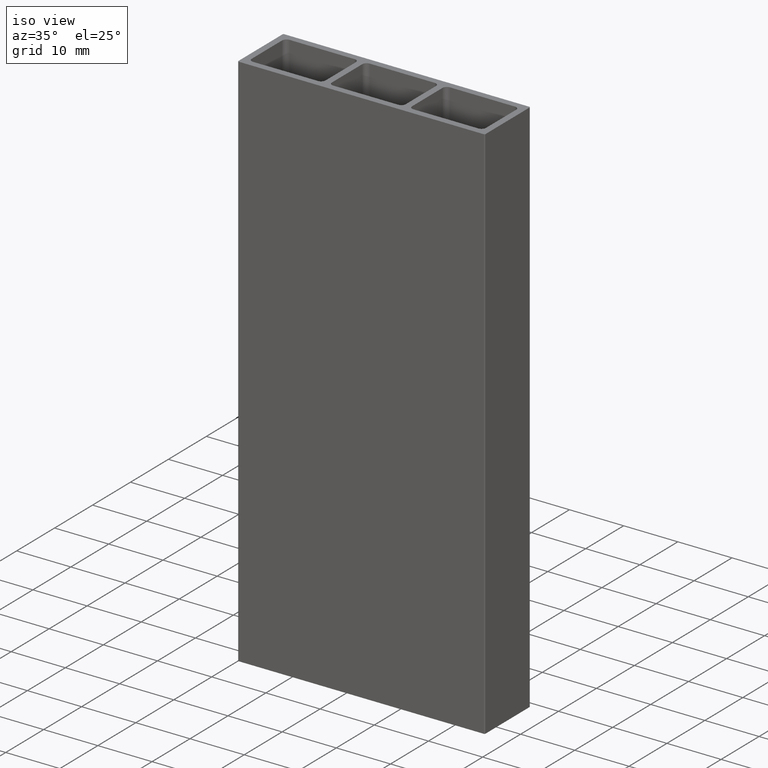
[diagram: clean part render]
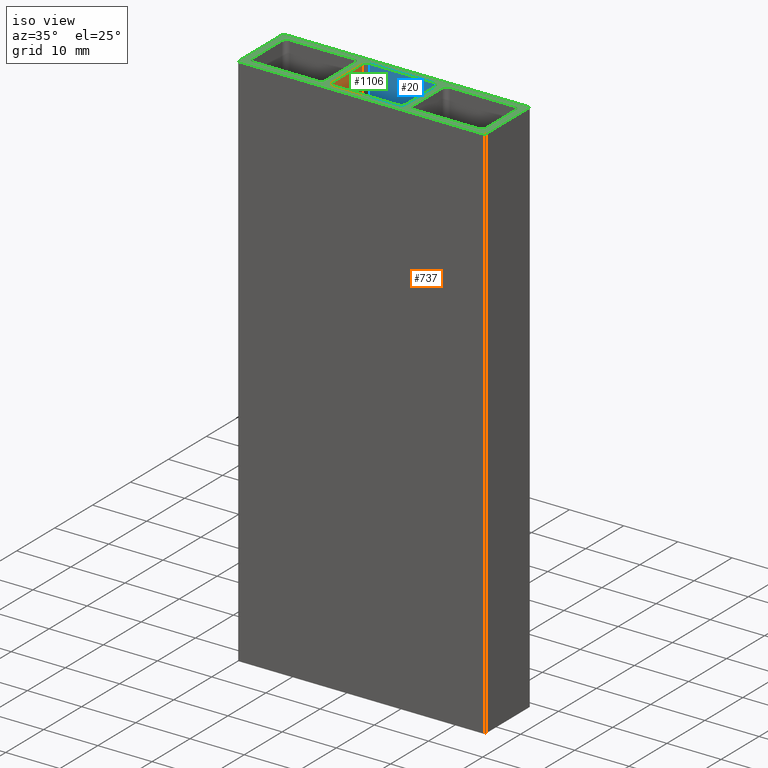
[diagram: same view with three faces highlighted in distinct colors, each labeled with its STEP entity id]
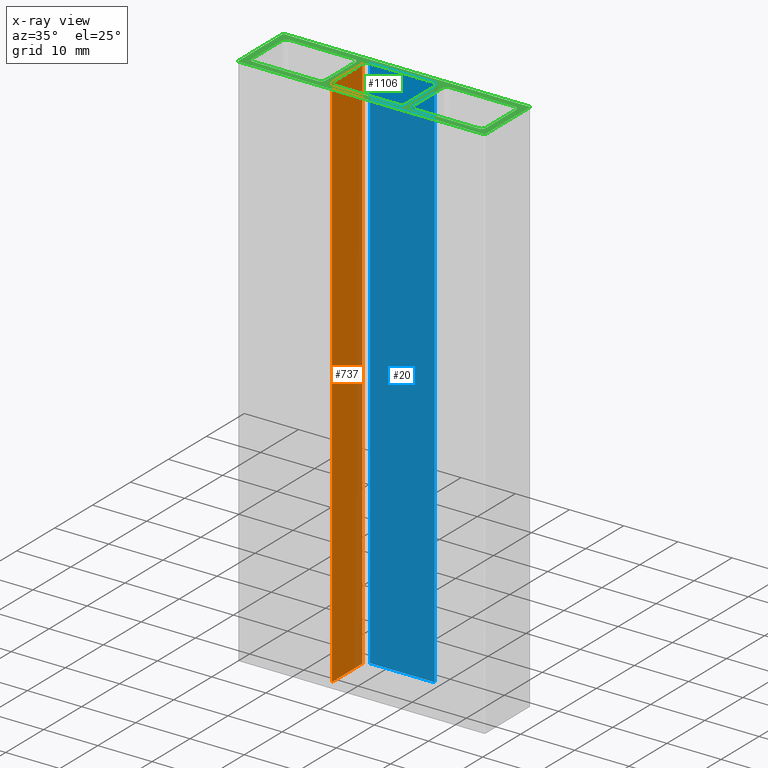
[diagram: x-ray of the same camera — body ghosted, the three highlighted faces saturated]
A machine part, iso view with three faces highlighted in distinct colors.
The next image is the same camera in x-ray (body ghosted, the three faces saturated) — at least one of them is partly hidden behind the body in this view.
Their STEP definitions:

[orange] entity #737 — the highlighted planar face has unit normal (1, -0, 0).
#9 = LINE ( 'NONE', #546, #784 ) ;
#10 = CARTESIAN_POINT ( 'NONE',  ( 7.999999999999998200, -3.999999999999995600, -50.00000000000000000 ) ) ;
#35 = VECTOR ( 'NONE', #833, 1000.000000000000000 ) ;
#57 = DIRECTION ( 'NONE',  ( -0.0000000000000000000, -0.0000000000000000000, -1.000000000000000000 ) ) ;
#60 = LINE ( 'NONE', #557, #35 ) ;
#102 = CARTESIAN_POINT ( 'NONE',  ( 7.999999999999998200, -3.999999999999995600, 50.00000000000000000 ) ) ;
#104 = CARTESIAN_POINT ( 'NONE',  ( 8.000000000000000000, 3.999999999999994200, -50.00000000000000000 ) ) ;
#108 = DIRECTION ( 'NONE',  ( -0.0000000000000000000, -0.0000000000000000000, -1.000000000000000000 ) ) ;
#141 = CARTESIAN_POINT ( 'NONE',  ( 8.000000000000000000, 3.999999999999994200, 50.00000000000000000 ) ) ;
#161 = VERTEX_POINT ( 'NONE', #10 ) ;
#200 = ORIENTED_EDGE ( 'NONE', *, *, #236, .T. ) ;
#209 = DIRECTION ( 'NONE',  ( 1.000000000000000000, -2.168404344971011600E-016, 0.0000000000000000000 ) ) ;
#236 = EDGE_CURVE ( 'NONE', #788, #762, #60, .T. ) ;
#240 = CARTESIAN_POINT ( 'NONE',  ( 8.000000000000000000, 3.999999999999994200, 50.00000000000000000 ) ) ;
#314 = VERTEX_POINT ( 'NONE', #1026 ) ;
#332 = ORIENTED_EDGE ( 'NONE', *, *, #1199, .F. ) ;
#344 = ORIENTED_EDGE ( 'NONE', *, *, #959, .T. ) ;
#366 = CARTESIAN_POINT ( 'NONE',  ( 8.000000000000000000, 3.999999999999994200, 50.00000000000000000 ) ) ;
#546 = CARTESIAN_POINT ( 'NONE',  ( 7.999999999999998200, -3.999999999999995600, 50.00000000000000000 ) ) ;
#557 = CARTESIAN_POINT ( 'NONE',  ( 8.000000000000000000, 3.999999999999994200, 50.00000000000000000 ) ) ;
#631 = LINE ( 'NONE', #240, #1133 ) ;
#676 = DIRECTION ( 'NONE',  ( 2.168404344971011600E-016, 1.000000000000000000, 0.0000000000000000000 ) ) ;
#693 = FACE_OUTER_BOUND ( 'NONE', #1089, .T. ) ;
#737 = ADVANCED_FACE ( 'NONE', ( #693 ), #1105, .T. ) ;
#762 = VERTEX_POINT ( 'NONE', #102 ) ;
#784 = VECTOR ( 'NONE', #108, 1000.000000000000000 ) ;
#788 = VERTEX_POINT ( 'NONE', #141 ) ;
#833 = DIRECTION ( 'NONE',  ( -2.168404344971011600E-016, -1.000000000000000000, 0.0000000000000000000 ) ) ;
#882 = LINE ( 'NONE', #104, #1008 ) ;
#955 = AXIS2_PLACEMENT_3D ( 'NONE', #366, #209, #676 ) ;
#959 = EDGE_CURVE ( 'NONE', #762, #161, #9, .T. ) ;
#986 = ORIENTED_EDGE ( 'NONE', *, *, #1031, .F. ) ;
#1008 = VECTOR ( 'NONE', #1019, 1000.000000000000000 ) ;
#1019 = DIRECTION ( 'NONE',  ( -2.168404344971011600E-016, -1.000000000000000000, 0.0000000000000000000 ) ) ;
#1026 = CARTESIAN_POINT ( 'NONE',  ( 8.000000000000000000, 3.999999999999994200, -50.00000000000000000 ) ) ;
#1031 = EDGE_CURVE ( 'NONE', #314, #161, #882, .T. ) ;
#1089 = EDGE_LOOP ( 'NONE', ( #986, #332, #200, #344 ) ) ;
#1105 = PLANE ( 'NONE',  #955 ) ;
#1133 = VECTOR ( 'NONE', #57, 1000.000000000000000 ) ;
#1199 = EDGE_CURVE ( 'NONE', #788, #314, #631, .T. ) ;

[blue] entity #20 — the highlighted planar face has unit normal (0, -1, 0).
#17 = EDGE_LOOP ( 'NONE', ( #620, #114, #482, #686 ) ) ;
#20 = ADVANCED_FACE ( 'NONE', ( #51 ), #661, .T. ) ;
#51 = FACE_OUTER_BOUND ( 'NONE', #17, .T. ) ;
#54 = VECTOR ( 'NONE', #91, 1000.000000000000000 ) ;
#61 = LINE ( 'NONE', #1087, #937 ) ;
#64 = LINE ( 'NONE', #427, #237 ) ;
#91 = DIRECTION ( 'NONE',  ( -0.0000000000000000000, -0.0000000000000000000, -1.000000000000000000 ) ) ;
#114 = ORIENTED_EDGE ( 'NONE', *, *, #1080, .F. ) ;
#159 = VERTEX_POINT ( 'NONE', #1122 ) ;
#216 = EDGE_CURVE ( 'NONE', #1156, #492, #61, .T. ) ;
#237 = VECTOR ( 'NONE', #600, 1000.000000000000000 ) ;
#283 = CARTESIAN_POINT ( 'NONE',  ( 20.79999999999999700, 4.799999999999999800, 50.00000000000000000 ) ) ;
#295 = DIRECTION ( 'NONE',  ( -1.000000000000000000, 0.0000000000000000000, 0.0000000000000000000 ) ) ;
#347 = CARTESIAN_POINT ( 'NONE',  ( 20.79999999999999700, 4.799999999999999800, 50.00000000000000000 ) ) ;
#427 = CARTESIAN_POINT ( 'NONE',  ( 8.800000000000006000, 4.799999999999999800, 50.00000000000000000 ) ) ;
#441 = AXIS2_PLACEMENT_3D ( 'NONE', #500, #1139, #679 ) ;
#463 = VERTEX_POINT ( 'NONE', #650 ) ;
#482 = ORIENTED_EDGE ( 'NONE', *, *, #216, .T. ) ;
#492 = VERTEX_POINT ( 'NONE', #884 ) ;
#494 = DIRECTION ( 'NONE',  ( -1.000000000000000000, 0.0000000000000000000, 0.0000000000000000000 ) ) ;
#500 = CARTESIAN_POINT ( 'NONE',  ( 20.79999999999999700, 4.799999999999999800, 50.00000000000000000 ) ) ;
#600 = DIRECTION ( 'NONE',  ( -0.0000000000000000000, -0.0000000000000000000, -1.000000000000000000 ) ) ;
#620 = ORIENTED_EDGE ( 'NONE', *, *, #947, .F. ) ;
#638 = CARTESIAN_POINT ( 'NONE',  ( 20.79999999999999700, 4.799999999999999800, -50.00000000000000000 ) ) ;
#650 = CARTESIAN_POINT ( 'NONE',  ( 20.79999999999999700, 4.799999999999999800, -50.00000000000000000 ) ) ;
#661 = PLANE ( 'NONE',  #441 ) ;
#679 = DIRECTION ( 'NONE',  ( 0.0000000000000000000, -0.0000000000000000000, -1.000000000000000000 ) ) ;
#686 = ORIENTED_EDGE ( 'NONE', *, *, #701, .T. ) ;
#701 = EDGE_CURVE ( 'NONE', #492, #159, #64, .T. ) ;
#799 = LINE ( 'NONE', #638, #844 ) ;
#844 = VECTOR ( 'NONE', #295, 1000.000000000000000 ) ;
#884 = CARTESIAN_POINT ( 'NONE',  ( 8.800000000000006000, 4.799999999999999800, 50.00000000000000000 ) ) ;
#937 = VECTOR ( 'NONE', #494, 1000.000000000000000 ) ;
#947 = EDGE_CURVE ( 'NONE', #463, #159, #799, .T. ) ;
#954 = LINE ( 'NONE', #283, #54 ) ;
#1080 = EDGE_CURVE ( 'NONE', #1156, #463, #954, .T. ) ;
#1087 = CARTESIAN_POINT ( 'NONE',  ( 20.79999999999999700, 4.799999999999999800, 50.00000000000000000 ) ) ;
#1122 = CARTESIAN_POINT ( 'NONE',  ( 8.800000000000006000, 4.799999999999999800, -50.00000000000000000 ) ) ;
#1139 = DIRECTION ( 'NONE',  ( 0.0000000000000000000, -1.000000000000000000, 0.0000000000000000000 ) ) ;
#1156 = VERTEX_POINT ( 'NONE', #347 ) ;

[green] entity #1106 — the highlighted planar face has unit normal (-0, 0, 1).
#1 = DIRECTION ( 'NONE',  ( 1.000000000000000000, 0.0000000000000000000, 0.0000000000000000000 ) ) ;
#6 = CIRCLE ( 'NONE', #142, 0.8000000000000020400 ) ;
#11 = VECTOR ( 'NONE', #220, 1000.000000000000000 ) ;
#18 = DIRECTION ( 'NONE',  ( 0.0000000000000000000, 0.0000000000000000000, 1.000000000000000000 ) ) ;
#23 = CIRCLE ( 'NONE', #976, 0.8000000000000003800 ) ;
#28 = VERTEX_POINT ( 'NONE', #1200 ) ;
#29 = DIRECTION ( 'NONE',  ( 1.000000000000000000, 0.0000000000000000000, 0.0000000000000000000 ) ) ;
#35 = VECTOR ( 'NONE', #833, 1000.000000000000000 ) ;
#39 = VECTOR ( 'NONE', #252, 1000.000000000000000 ) ;
#42 = DIRECTION ( 'NONE',  ( -1.000000000000000000, 0.0000000000000000000, 0.0000000000000000000 ) ) ;
#43 = VERTEX_POINT ( 'NONE', #228 ) ;
#56 = ORIENTED_EDGE ( 'NONE', *, *, #778, .T. ) ;
#60 = LINE ( 'NONE', #557, #35 ) ;
#61 = LINE ( 'NONE', #1087, #937 ) ;
#63 = VECTOR ( 'NONE', #1093, 1000.000000000000000 ) ;
#65 = DIRECTION ( 'NONE',  ( 1.000000000000000000, 0.0000000000000000000, 0.0000000000000000000 ) ) ;
#66 = CARTESIAN_POINT ( 'NONE',  ( 23.60000000000000500, 4.799999999999999800, 50.00000000000000000 ) ) ;
#69 = LINE ( 'NONE', #798, #872 ) ;
#79 = CARTESIAN_POINT ( 'NONE',  ( 8.799999999999998900, -4.000000000000000900, 50.00000000000000000 ) ) ;
#81 = ORIENTED_EDGE ( 'NONE', *, *, #282, .F. ) ;
#93 = EDGE_CURVE ( 'NONE', #654, #587, #122, .T. ) ;
#95 = VERTEX_POINT ( 'NONE', #624 ) ;
#102 = CARTESIAN_POINT ( 'NONE',  ( 7.999999999999998200, -3.999999999999995600, 50.00000000000000000 ) ) ;
#103 = CIRCLE ( 'NONE', #561, 0.8000000000000003800 ) ;
#110 = ORIENTED_EDGE ( 'NONE', *, *, #1160, .F. ) ;
#113 = LINE ( 'NONE', #438, #1113 ) ;
#115 = EDGE_CURVE ( 'NONE', #786, #361, #222, .T. ) ;
#117 = DIRECTION ( 'NONE',  ( 1.000000000000000000, 0.0000000000000000000, 0.0000000000000000000 ) ) ;
#122 = CIRCLE ( 'NONE', #625, 0.1999999999999996500 ) ;
#126 = CIRCLE ( 'NONE', #1038, 0.8000000000000020400 ) ;
#128 = DIRECTION ( 'NONE',  ( 1.000000000000000000, 0.0000000000000000000, 0.0000000000000000000 ) ) ;
#130 = EDGE_CURVE ( 'NONE', #612, #654, #1145, .T. ) ;
#132 = CARTESIAN_POINT ( 'NONE',  ( -6.799999999999998900, -3.999999999999995600, 50.00000000000000000 ) ) ;
#137 = CIRCLE ( 'NONE', #770, 0.8000000000000003800 ) ;
#141 = CARTESIAN_POINT ( 'NONE',  ( 8.000000000000000000, 3.999999999999994200, 50.00000000000000000 ) ) ;
#142 = AXIS2_PLACEMENT_3D ( 'NONE', #948, #1040, #302 ) ;
#143 = ORIENTED_EDGE ( 'NONE', *, *, #913, .F. ) ;
#157 = AXIS2_PLACEMENT_3D ( 'NONE', #369, #272, #837 ) ;
#165 = CIRCLE ( 'NONE', #350, 0.8000000000000003800 ) ;
#167 = DIRECTION ( 'NONE',  ( -0.0000000000000000000, 0.0000000000000000000, 1.000000000000000000 ) ) ;
#179 = LINE ( 'NONE', #596, #433 ) ;
#183 = AXIS2_PLACEMENT_3D ( 'NONE', #1066, #1168, #65 ) ;
#185 = VERTEX_POINT ( 'NONE', #877 ) ;
#190 = EDGE_CURVE ( 'NONE', #835, #299, #810, .T. ) ;
#194 = CARTESIAN_POINT ( 'NONE',  ( 37.40000000000000600, -5.800000000000002500, 50.00000000000000000 ) ) ;
#196 = DIRECTION ( 'NONE',  ( -0.0000000000000000000, 1.000000000000000000, -0.0000000000000000000 ) ) ;
#199 = EDGE_CURVE ( 'NONE', #821, #836, #179, .T. ) ;
#207 = ORIENTED_EDGE ( 'NONE', *, *, #304, .F. ) ;
#208 = AXIS2_PLACEMENT_3D ( 'NONE', #79, #720, #571 ) ;
#210 = ORIENTED_EDGE ( 'NONE', *, *, #590, .F. ) ;
#216 = EDGE_CURVE ( 'NONE', #1156, #492, #61, .T. ) ;
#218 = EDGE_CURVE ( 'NONE', #337, #1070, #717, .T. ) ;
#220 = DIRECTION ( 'NONE',  ( 1.000000000000000000, -0.0000000000000000000, -0.0000000000000000000 ) ) ;
#222 = CIRCLE ( 'NONE', #755, 0.8000000000000003800 ) ;
#225 = VERTEX_POINT ( 'NONE', #1157 ) ;
#228 = CARTESIAN_POINT ( 'NONE',  ( 6.800000000000000700, 3.999999999999994200, 50.00000000000000000 ) ) ;
#234 = ORIENTED_EDGE ( 'NONE', *, *, #610, .F. ) ;
#236 = EDGE_CURVE ( 'NONE', #788, #762, #60, .T. ) ;
#239 = LINE ( 'NONE', #918, #11 ) ;
#251 = VECTOR ( 'NONE', #1030, 1000.000000000000000 ) ;
#252 = DIRECTION ( 'NONE',  ( 1.000000000000000000, 0.0000000000000000000, 0.0000000000000000000 ) ) ;
#263 = CARTESIAN_POINT ( 'NONE',  ( -7.800000000000001600, -5.800000000000001600, 50.00000000000000000 ) ) ;
#272 = DIRECTION ( 'NONE',  ( -0.0000000000000000000, 0.0000000000000000000, 1.000000000000000000 ) ) ;
#279 = CARTESIAN_POINT ( 'NONE',  ( 22.80000000000000100, 3.999999999999994200, 50.00000000000000000 ) ) ;
#282 = EDGE_CURVE ( 'NONE', #225, #779, #746, .T. ) ;
#289 = LINE ( 'NONE', #527, #421 ) ;
#292 = VERTEX_POINT ( 'NONE', #795 ) ;
#296 = AXIS2_PLACEMENT_3D ( 'NONE', #888, #1060, #42 ) ;
#297 = CARTESIAN_POINT ( 'NONE',  ( 35.60000000000000100, 3.999999999999999100, 50.00000000000000000 ) ) ;
#299 = VERTEX_POINT ( 'NONE', #659 ) ;
#302 = DIRECTION ( 'NONE',  ( -1.000000000000000000, 0.0000000000000000000, 0.0000000000000000000 ) ) ;
#304 = EDGE_CURVE ( 'NONE', #185, #225, #951, .T. ) ;
#316 = LINE ( 'NONE', #1102, #39 ) ;
#317 = ORIENTED_EDGE ( 'NONE', *, *, #429, .T. ) ;
#320 = CARTESIAN_POINT ( 'NONE',  ( -7.800000000000001600, -6.000000000000000900, 50.00000000000000000 ) ) ;
#322 = CARTESIAN_POINT ( 'NONE',  ( 36.39999999999999900, 3.999999999999994200, 50.00000000000000000 ) ) ;
#335 = CARTESIAN_POINT ( 'NONE',  ( -7.800000000000000700, 5.799999999999999800, 50.00000000000000000 ) ) ;
#337 = VERTEX_POINT ( 'NONE', #66 ) ;
#340 = ORIENTED_EDGE ( 'NONE', *, *, #738, .F. ) ;
#341 = ORIENTED_EDGE ( 'NONE', *, *, #218, .F. ) ;
#347 = CARTESIAN_POINT ( 'NONE',  ( 20.79999999999999700, 4.799999999999999800, 50.00000000000000000 ) ) ;
#350 = AXIS2_PLACEMENT_3D ( 'NONE', #1081, #1177, #533 ) ;
#353 = CARTESIAN_POINT ( 'NONE',  ( 23.60000000000000500, 4.799999999999999800, 50.00000000000000000 ) ) ;
#356 = CARTESIAN_POINT ( 'NONE',  ( -6.800000000000000700, 3.999999999999994200, 50.00000000000000000 ) ) ;
#361 = VERTEX_POINT ( 'NONE', #519 ) ;
#369 = CARTESIAN_POINT ( 'NONE',  ( -7.999999999999998200, -6.000000000000000900, 50.00000000000000000 ) ) ;
#371 = DIRECTION ( 'NONE',  ( -1.000000000000000000, 0.0000000000000000000, 0.0000000000000000000 ) ) ;
#380 = CARTESIAN_POINT ( 'NONE',  ( 6.000000000000001800, -4.000000000000000900, 50.00000000000000000 ) ) ;
#383 = ORIENTED_EDGE ( 'NONE', *, *, #1175, .T. ) ;
#388 = CARTESIAN_POINT ( 'NONE',  ( 37.60000000000000100, -5.800000000000002500, 50.00000000000000000 ) ) ;
#398 = EDGE_LOOP ( 'NONE', ( #792, #1164, #110, #830, #458, #419, #340, #143 ) ) ;
#413 = ORIENTED_EDGE ( 'NONE', *, *, #236, .F. ) ;
#414 = DIRECTION ( 'NONE',  ( -1.000000000000000000, -0.0000000000000000000, -0.0000000000000000000 ) ) ;
#415 = CARTESIAN_POINT ( 'NONE',  ( 23.60000000000000100, 4.000000000000000000, 50.00000000000000000 ) ) ;
#418 = VECTOR ( 'NONE', #196, 1000.000000000000000 ) ;
#419 = ORIENTED_EDGE ( 'NONE', *, *, #115, .F. ) ;
#421 = VECTOR ( 'NONE', #521, 1000.000000000000000 ) ;
#429 = EDGE_CURVE ( 'NONE', #1005, #607, #906, .T. ) ;
#431 = DIRECTION ( 'NONE',  ( 1.000000000000000000, 0.0000000000000000000, 0.0000000000000000000 ) ) ;
#432 = VERTEX_POINT ( 'NONE', #727 ) ;
#433 = VECTOR ( 'NONE', #504, 1000.000000000000000 ) ;
#438 = CARTESIAN_POINT ( 'NONE',  ( -5.999999999999994700, 4.799999999999999800, 50.00000000000000000 ) ) ;
#454 = ORIENTED_EDGE ( 'NONE', *, *, #1022, .F. ) ;
#458 = ORIENTED_EDGE ( 'NONE', *, *, #964, .F. ) ;
#470 = DIRECTION ( 'NONE',  ( 1.000000000000000000, 0.0000000000000000000, 0.0000000000000000000 ) ) ;
#472 = EDGE_CURVE ( 'NONE', #779, #95, #126, .T. ) ;
#474 = DIRECTION ( 'NONE',  ( -1.000000000000000000, 0.0000000000000000000, 0.0000000000000000000 ) ) ;
#475 = DIRECTION ( 'NONE',  ( -1.000000000000000000, 0.0000000000000000000, 0.0000000000000000000 ) ) ;
#479 = CIRCLE ( 'NONE', #208, 0.8000000000000003800 ) ;
#483 = AXIS2_PLACEMENT_3D ( 'NONE', #335, #980, #431 ) ;
#484 = CIRCLE ( 'NONE', #483, 0.1999999999999996500 ) ;
#487 = EDGE_LOOP ( 'NONE', ( #1189, #234, #542, #931, #1065, #210, #413, #1136 ) ) ;
#489 = CARTESIAN_POINT ( 'NONE',  ( 8.800000000000000700, 3.999999999999999100, 50.00000000000000000 ) ) ;
#491 = CARTESIAN_POINT ( 'NONE',  ( -7.999999999999998200, -5.800000000000002500, 50.00000000000000000 ) ) ;
#492 = VERTEX_POINT ( 'NONE', #884 ) ;
#494 = DIRECTION ( 'NONE',  ( -1.000000000000000000, 0.0000000000000000000, 0.0000000000000000000 ) ) ;
#501 = DIRECTION ( 'NONE',  ( -1.000000000000000000, 0.0000000000000000000, 0.0000000000000000000 ) ) ;
#502 = CIRCLE ( 'NONE', #690, 0.1999999999999987900 ) ;
#504 = DIRECTION ( 'NONE',  ( -0.0000000000000000000, 1.000000000000000000, -0.0000000000000000000 ) ) ;
#509 = EDGE_CURVE ( 'NONE', #43, #28, #23, .T. ) ;
#515 = VERTEX_POINT ( 'NONE', #132 ) ;
#519 = CARTESIAN_POINT ( 'NONE',  ( 6.800000000000002500, -3.999999999999995600, 50.00000000000000000 ) ) ;
#520 = CIRCLE ( 'NONE', #990, 0.8000000000000020400 ) ;
#521 = DIRECTION ( 'NONE',  ( 0.0000000000000000000, -1.000000000000000000, 0.0000000000000000000 ) ) ;
#524 = CARTESIAN_POINT ( 'NONE',  ( 37.60000000000000100, 5.999999999999999100, 50.00000000000000000 ) ) ;
#527 = CARTESIAN_POINT ( 'NONE',  ( 22.80000000000000100, 3.999999999999994200, 50.00000000000000000 ) ) ;
#531 = LINE ( 'NONE', #966, #63 ) ;
#533 = DIRECTION ( 'NONE',  ( 1.000000000000000000, 0.0000000000000000000, 0.0000000000000000000 ) ) ;
#542 = ORIENTED_EDGE ( 'NONE', *, *, #199, .F. ) ;
#544 = VERTEX_POINT ( 'NONE', #547 ) ;
#545 = VECTOR ( 'NONE', #414, 1000.000000000000000 ) ;
#547 = CARTESIAN_POINT ( 'NONE',  ( 37.40000000000000600, -6.000000000000000900, 50.00000000000000000 ) ) ;
#548 = FACE_BOUND ( 'NONE', #398, .T. ) ;
#556 = CARTESIAN_POINT ( 'NONE',  ( 20.80000000000000100, -4.000000000000000900, 50.00000000000000000 ) ) ;
#557 = CARTESIAN_POINT ( 'NONE',  ( 8.000000000000000000, 3.999999999999994200, 50.00000000000000000 ) ) ;
#559 = CARTESIAN_POINT ( 'NONE',  ( 21.60000000000000100, 3.999999999999994200, 50.00000000000000000 ) ) ;
#561 = AXIS2_PLACEMENT_3D ( 'NONE', #1176, #594, #371 ) ;
#564 = DIRECTION ( 'NONE',  ( 0.0000000000000000000, 0.0000000000000000000, 1.000000000000000000 ) ) ;
#571 = DIRECTION ( 'NONE',  ( 1.000000000000000000, 0.0000000000000000000, 0.0000000000000000000 ) ) ;
#587 = VERTEX_POINT ( 'NONE', #320 ) ;
#590 = EDGE_CURVE ( 'NONE', #762, #593, #479, .T. ) ;
#593 = VERTEX_POINT ( 'NONE', #695 ) ;
#594 = DIRECTION ( 'NONE',  ( 0.0000000000000000000, 0.0000000000000000000, 1.000000000000000000 ) ) ;
#596 = CARTESIAN_POINT ( 'NONE',  ( 21.60000000000000100, 3.999999999999994200, 50.00000000000000000 ) ) ;
#598 = ORIENTED_EDGE ( 'NONE', *, *, #985, .T. ) ;
#607 = VERTEX_POINT ( 'NONE', #733 ) ;
#610 = EDGE_CURVE ( 'NONE', #836, #1156, #6, .T. ) ;
#612 = VERTEX_POINT ( 'NONE', #708 ) ;
#614 = LINE ( 'NONE', #682, #734 ) ;
#624 = CARTESIAN_POINT ( 'NONE',  ( 35.59999999999999400, 4.799999999999999800, 50.00000000000000000 ) ) ;
#625 = AXIS2_PLACEMENT_3D ( 'NONE', #263, #167, #128 ) ;
#627 = EDGE_CURVE ( 'NONE', #95, #337, #1112, .T. ) ;
#654 = VERTEX_POINT ( 'NONE', #491 ) ;
#658 = CARTESIAN_POINT ( 'NONE',  ( 23.60000000000000100, -4.000000000000000900, 50.00000000000000000 ) ) ;
#659 = CARTESIAN_POINT ( 'NONE',  ( -7.800000000000001600, 5.999999999999999100, 50.00000000000000000 ) ) ;
#660 = DIRECTION ( 'NONE',  ( 1.000000000000000000, 0.0000000000000000000, 0.0000000000000000000 ) ) ;
#662 = ORIENTED_EDGE ( 'NONE', *, *, #93, .T. ) ;
#664 = ORIENTED_EDGE ( 'NONE', *, *, #190, .T. ) ;
#670 = EDGE_LOOP ( 'NONE', ( #678, #598, #317, #56, #664, #383, #1203, #662 ) ) ;
#674 = VERTEX_POINT ( 'NONE', #356 ) ;
#678 = ORIENTED_EDGE ( 'NONE', *, *, #886, .T. ) ;
#682 = CARTESIAN_POINT ( 'NONE',  ( -5.999999999999992900, -4.800000000000001600, 50.00000000000000000 ) ) ;
#685 = DIRECTION ( 'NONE',  ( 1.000000000000000000, 0.0000000000000000000, 0.0000000000000000000 ) ) ;
#688 = VERTEX_POINT ( 'NONE', #700 ) ;
#690 = AXIS2_PLACEMENT_3D ( 'NONE', #194, #753, #660 ) ;
#695 = CARTESIAN_POINT ( 'NONE',  ( 8.800000000000004300, -4.800000000000001600, 50.00000000000000000 ) ) ;
#700 = CARTESIAN_POINT ( 'NONE',  ( 22.80000000000000100, -3.999999999999995600, 50.00000000000000000 ) ) ;
#708 = CARTESIAN_POINT ( 'NONE',  ( -8.000000000000000000, 5.799999999999999800, 50.00000000000000000 ) ) ;
#712 = DIRECTION ( 'NONE',  ( -1.000000000000000000, -0.0000000000000000000, -0.0000000000000000000 ) ) ;
#713 = EDGE_LOOP ( 'NONE', ( #719, #341, #816, #929, #81, #207, #1135, #454 ) ) ;
#715 = EDGE_CURVE ( 'NONE', #492, #788, #137, .T. ) ;
#717 = CIRCLE ( 'NONE', #1056, 0.8000000000000020400 ) ;
#718 = VECTOR ( 'NONE', #832, 1000.000000000000000 ) ;
#719 = ORIENTED_EDGE ( 'NONE', *, *, #1191, .F. ) ;
#720 = DIRECTION ( 'NONE',  ( 0.0000000000000000000, 0.0000000000000000000, 1.000000000000000000 ) ) ;
#727 = CARTESIAN_POINT ( 'NONE',  ( 23.60000000000000900, -4.800000000000001600, 50.00000000000000000 ) ) ;
#733 = CARTESIAN_POINT ( 'NONE',  ( 37.60000000000000100, 5.799999999999999800, 50.00000000000000000 ) ) ;
#734 = VECTOR ( 'NONE', #29, 1000.000000000000000 ) ;
#738 = EDGE_CURVE ( 'NONE', #1138, #786, #614, .T. ) ;
#746 = LINE ( 'NONE', #322, #766 ) ;
#753 = DIRECTION ( 'NONE',  ( -0.0000000000000000000, 0.0000000000000000000, 1.000000000000000000 ) ) ;
#755 = AXIS2_PLACEMENT_3D ( 'NONE', #380, #933, #475 ) ;
#758 = CARTESIAN_POINT ( 'NONE',  ( 24.00000000000000000, 5.999999999999999100, 50.00000000000000000 ) ) ;
#759 = CARTESIAN_POINT ( 'NONE',  ( 6.000000000000000000, 3.999999999999999100, 50.00000000000000000 ) ) ;
#762 = VERTEX_POINT ( 'NONE', #102 ) ;
#766 = VECTOR ( 'NONE', #1109, 1000.000000000000000 ) ;
#768 = DIRECTION ( 'NONE',  ( 0.0000000000000000000, 0.0000000000000000000, 1.000000000000000000 ) ) ;
#770 = AXIS2_PLACEMENT_3D ( 'NONE', #489, #768, #117 ) ;
#773 = DIRECTION ( 'NONE',  ( 0.0000000000000000000, 0.0000000000000000000, 1.000000000000000000 ) ) ;
#778 = EDGE_CURVE ( 'NONE', #607, #835, #1052, .T. ) ;
#779 = VERTEX_POINT ( 'NONE', #871 ) ;
#786 = VERTEX_POINT ( 'NONE', #1123 ) ;
#788 = VERTEX_POINT ( 'NONE', #141 ) ;
#792 = ORIENTED_EDGE ( 'NONE', *, *, #941, .F. ) ;
#795 = CARTESIAN_POINT ( 'NONE',  ( -5.999999999999994700, 4.799999999999999800, 50.00000000000000000 ) ) ;
#798 = CARTESIAN_POINT ( 'NONE',  ( 23.60000000000000900, -4.800000000000001600, 50.00000000000000000 ) ) ;
#810 = LINE ( 'NONE', #758, #545 ) ;
#816 = ORIENTED_EDGE ( 'NONE', *, *, #627, .F. ) ;
#821 = VERTEX_POINT ( 'NONE', #958 ) ;
#826 = EDGE_CURVE ( 'NONE', #432, #185, #69, .T. ) ;
#830 = ORIENTED_EDGE ( 'NONE', *, *, #509, .F. ) ;
#831 = CARTESIAN_POINT ( 'NONE',  ( -5.999999999999992900, -4.800000000000001600, 50.00000000000000000 ) ) ;
#832 = DIRECTION ( 'NONE',  ( -1.000000000000000000, -0.0000000000000000000, -0.0000000000000000000 ) ) ;
#833 = DIRECTION ( 'NONE',  ( -2.168404344971011600E-016, -1.000000000000000000, 0.0000000000000000000 ) ) ;
#835 = VERTEX_POINT ( 'NONE', #1118 ) ;
#836 = VERTEX_POINT ( 'NONE', #559 ) ;
#837 = DIRECTION ( 'NONE',  ( 1.000000000000000000, 0.0000000000000000000, 0.0000000000000000000 ) ) ;
#871 = CARTESIAN_POINT ( 'NONE',  ( 36.39999999999999900, 3.999999999999994200, 50.00000000000000000 ) ) ;
#872 = VECTOR ( 'NONE', #1, 1000.000000000000000 ) ;
#877 = CARTESIAN_POINT ( 'NONE',  ( 35.60000000000000100, -4.799999999999998900, 50.00000000000000000 ) ) ;
#884 = CARTESIAN_POINT ( 'NONE',  ( 8.800000000000006000, 4.799999999999999800, 50.00000000000000000 ) ) ;
#886 = EDGE_CURVE ( 'NONE', #587, #544, #316, .T. ) ;
#888 = CARTESIAN_POINT ( 'NONE',  ( 35.60000000000000900, -4.000000000000000900, 50.00000000000000000 ) ) ;
#894 = VECTOR ( 'NONE', #960, 1000.000000000000000 ) ;
#906 = LINE ( 'NONE', #524, #418 ) ;
#913 = EDGE_CURVE ( 'NONE', #515, #1138, #103, .T. ) ;
#918 = CARTESIAN_POINT ( 'NONE',  ( 20.79999999999999400, -4.800000000000001600, 50.00000000000000000 ) ) ;
#929 = ORIENTED_EDGE ( 'NONE', *, *, #472, .F. ) ;
#931 = ORIENTED_EDGE ( 'NONE', *, *, #1045, .F. ) ;
#933 = DIRECTION ( 'NONE',  ( 0.0000000000000000000, 0.0000000000000000000, 1.000000000000000000 ) ) ;
#934 = DIRECTION ( 'NONE',  ( -1.000000000000000000, 0.0000000000000000000, 0.0000000000000000000 ) ) ;
#937 = VECTOR ( 'NONE', #494, 1000.000000000000000 ) ;
#941 = EDGE_CURVE ( 'NONE', #674, #515, #531, .T. ) ;
#944 = CARTESIAN_POINT ( 'NONE',  ( 20.79999999999999400, -4.800000000000001600, 50.00000000000000000 ) ) ;
#948 = CARTESIAN_POINT ( 'NONE',  ( 20.80000000000000100, 4.000000000000000000, 50.00000000000000000 ) ) ;
#951 = CIRCLE ( 'NONE', #296, 0.7999999999999951600 ) ;
#958 = CARTESIAN_POINT ( 'NONE',  ( 21.60000000000000100, -3.999999999999994700, 50.00000000000000000 ) ) ;
#960 = DIRECTION ( 'NONE',  ( 1.445602896647339200E-016, -1.000000000000000000, 0.0000000000000000000 ) ) ;
#964 = EDGE_CURVE ( 'NONE', #361, #43, #1023, .T. ) ;
#966 = CARTESIAN_POINT ( 'NONE',  ( -6.800000000000000700, 3.999999999999994200, 50.00000000000000000 ) ) ;
#976 = AXIS2_PLACEMENT_3D ( 'NONE', #759, #1050, #501 ) ;
#980 = DIRECTION ( 'NONE',  ( -0.0000000000000000000, 0.0000000000000000000, 1.000000000000000000 ) ) ;
#981 = FACE_BOUND ( 'NONE', #713, .T. ) ;
#985 = EDGE_CURVE ( 'NONE', #544, #1005, #502, .T. ) ;
#990 = AXIS2_PLACEMENT_3D ( 'NONE', #658, #564, #474 ) ;
#994 = CARTESIAN_POINT ( 'NONE',  ( -8.000000000000000000, 5.999999999999999100, 50.00000000000000000 ) ) ;
#1005 = VERTEX_POINT ( 'NONE', #388 ) ;
#1011 = PLANE ( 'NONE',  #157 ) ;
#1022 = EDGE_CURVE ( 'NONE', #688, #432, #520, .T. ) ;
#1023 = LINE ( 'NONE', #1128, #251 ) ;
#1030 = DIRECTION ( 'NONE',  ( -2.168404344971011600E-016, 1.000000000000000000, -0.0000000000000000000 ) ) ;
#1038 = AXIS2_PLACEMENT_3D ( 'NONE', #297, #18, #934 ) ;
#1040 = DIRECTION ( 'NONE',  ( 0.0000000000000000000, 0.0000000000000000000, 1.000000000000000000 ) ) ;
#1045 = EDGE_CURVE ( 'NONE', #1152, #821, #1097, .T. ) ;
#1050 = DIRECTION ( 'NONE',  ( 0.0000000000000000000, 0.0000000000000000000, 1.000000000000000000 ) ) ;
#1051 = FACE_BOUND ( 'NONE', #487, .T. ) ;
#1052 = CIRCLE ( 'NONE', #183, 0.1999999999999987900 ) ;
#1056 = AXIS2_PLACEMENT_3D ( 'NONE', #415, #773, #685 ) ;
#1060 = DIRECTION ( 'NONE',  ( 0.0000000000000000000, 0.0000000000000000000, 1.000000000000000000 ) ) ;
#1065 = ORIENTED_EDGE ( 'NONE', *, *, #1140, .F. ) ;
#1066 = CARTESIAN_POINT ( 'NONE',  ( 37.40000000000000600, 5.799999999999999800, 50.00000000000000000 ) ) ;
#1070 = VERTEX_POINT ( 'NONE', #279 ) ;
#1077 = FACE_OUTER_BOUND ( 'NONE', #670, .T. ) ;
#1081 = CARTESIAN_POINT ( 'NONE',  ( -6.000000000000000000, 4.000000000000000000, 50.00000000000000000 ) ) ;
#1087 = CARTESIAN_POINT ( 'NONE',  ( 20.79999999999999700, 4.799999999999999800, 50.00000000000000000 ) ) ;
#1093 = DIRECTION ( 'NONE',  ( 2.168404344971011600E-016, -1.000000000000000000, 0.0000000000000000000 ) ) ;
#1097 = CIRCLE ( 'NONE', #1178, 0.8000000000000020400 ) ;
#1102 = CARTESIAN_POINT ( 'NONE',  ( -7.999999999999998200, -6.000000000000000900, 50.00000000000000000 ) ) ;
#1106 = ADVANCED_FACE ( 'NONE', ( #1051, #1077, #548, #981 ), #1011, .T. ) ;
#1109 = DIRECTION ( 'NONE',  ( -0.0000000000000000000, 1.000000000000000000, -0.0000000000000000000 ) ) ;
#1112 = LINE ( 'NONE', #353, #718 ) ;
#1113 = VECTOR ( 'NONE', #712, 1000.000000000000000 ) ;
#1115 = DIRECTION ( 'NONE',  ( 0.0000000000000000000, 0.0000000000000000000, 1.000000000000000000 ) ) ;
#1118 = CARTESIAN_POINT ( 'NONE',  ( 37.40000000000000600, 5.999999999999999100, 50.00000000000000000 ) ) ;
#1123 = CARTESIAN_POINT ( 'NONE',  ( 5.999999999999996400, -4.800000000000001600, 50.00000000000000000 ) ) ;
#1128 = CARTESIAN_POINT ( 'NONE',  ( 6.800000000000000700, 3.999999999999994200, 50.00000000000000000 ) ) ;
#1135 = ORIENTED_EDGE ( 'NONE', *, *, #826, .F. ) ;
#1136 = ORIENTED_EDGE ( 'NONE', *, *, #715, .F. ) ;
#1138 = VERTEX_POINT ( 'NONE', #831 ) ;
#1140 = EDGE_CURVE ( 'NONE', #593, #1152, #239, .T. ) ;
#1145 = LINE ( 'NONE', #994, #894 ) ;
#1152 = VERTEX_POINT ( 'NONE', #944 ) ;
#1154 = EDGE_CURVE ( 'NONE', #292, #674, #165, .T. ) ;
#1156 = VERTEX_POINT ( 'NONE', #347 ) ;
#1157 = CARTESIAN_POINT ( 'NONE',  ( 36.39999999999999900, -3.999999999999995600, 50.00000000000000000 ) ) ;
#1160 = EDGE_CURVE ( 'NONE', #28, #292, #113, .T. ) ;
#1164 = ORIENTED_EDGE ( 'NONE', *, *, #1154, .F. ) ;
#1168 = DIRECTION ( 'NONE',  ( -0.0000000000000000000, 0.0000000000000000000, 1.000000000000000000 ) ) ;
#1175 = EDGE_CURVE ( 'NONE', #299, #612, #484, .T. ) ;
#1176 = CARTESIAN_POINT ( 'NONE',  ( -5.999999999999998200, -4.000000000000000900, 50.00000000000000000 ) ) ;
#1177 = DIRECTION ( 'NONE',  ( 0.0000000000000000000, 0.0000000000000000000, 1.000000000000000000 ) ) ;
#1178 = AXIS2_PLACEMENT_3D ( 'NONE', #556, #1115, #470 ) ;
#1189 = ORIENTED_EDGE ( 'NONE', *, *, #216, .F. ) ;
#1191 = EDGE_CURVE ( 'NONE', #1070, #688, #289, .T. ) ;
#1200 = CARTESIAN_POINT ( 'NONE',  ( 5.999999999999994700, 4.799999999999999800, 50.00000000000000000 ) ) ;
#1203 = ORIENTED_EDGE ( 'NONE', *, *, #130, .T. ) ;